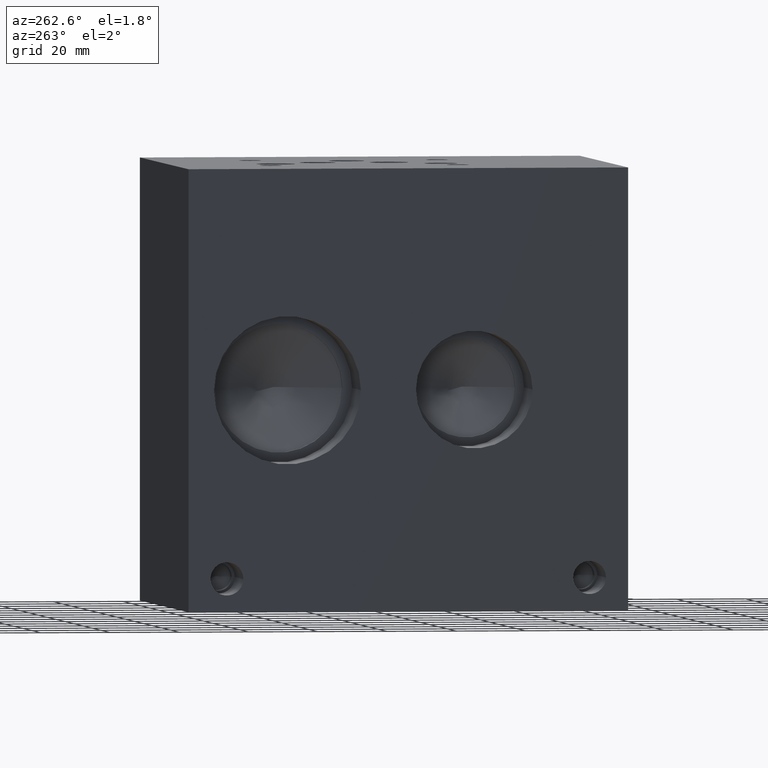
[diagram: clean part render]
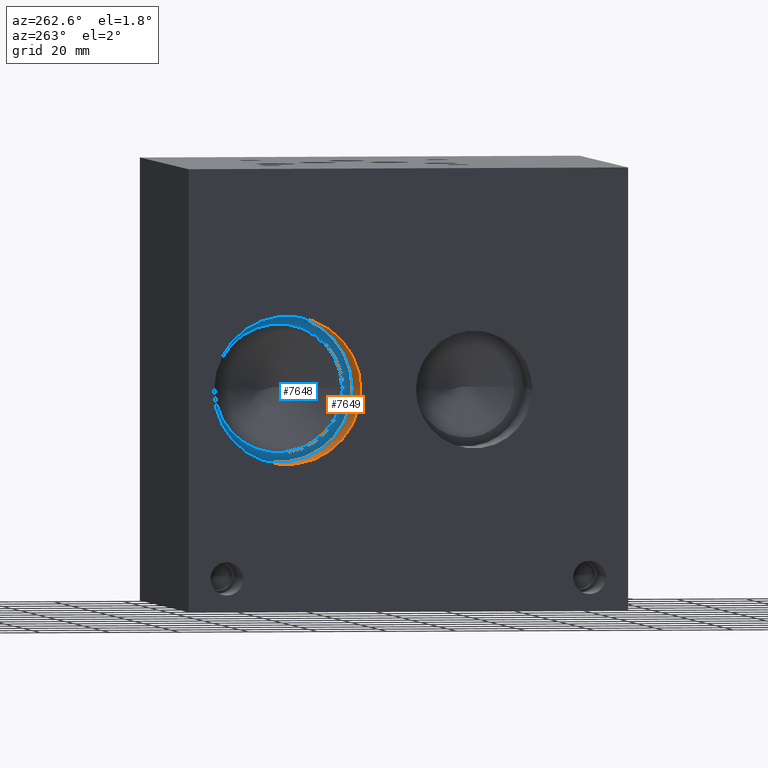
[diagram: same view with the hole feature highlighted: cylindrical wall and planar end face, labeled with their STEP entity ids]
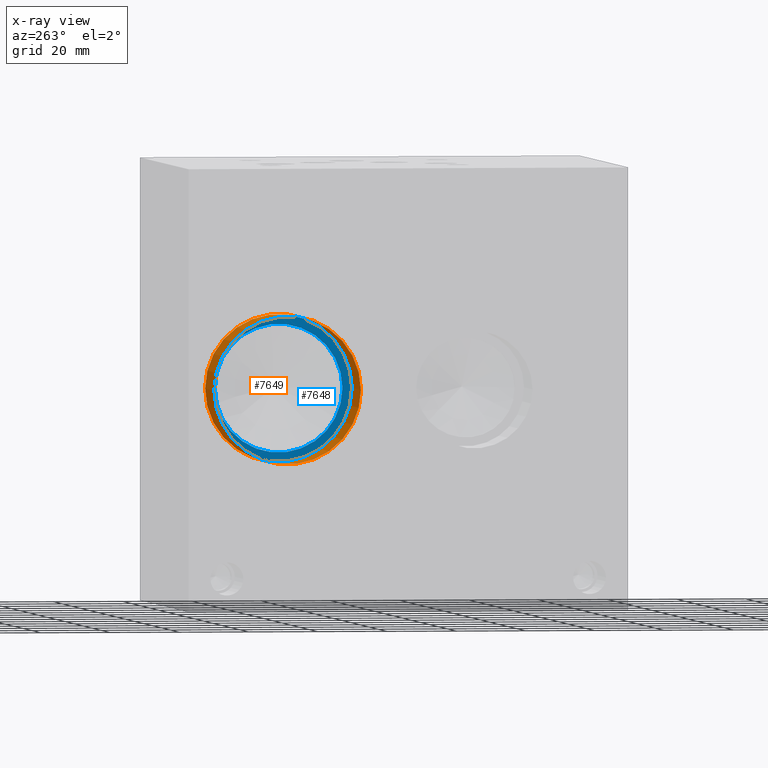
[diagram: x-ray of the same camera — body ghosted, the hole faces saturated]
A machine part, auxiliary view. The highlighted faces form one hole feature of diameter 42.4688 mm: the cylindrical wall (entity #7649, orange) and its adjacent planar end face (entity #7648, blue) — they share a circular edge in the B-rep.
The next image is the same camera in x-ray (body ghosted, the hole faces saturated) — the bore reads through the body.
Wall:
#45=CYLINDRICAL_SURFACE('',#8073,21.2344);
#179=CIRCLE('',#8070,21.2344);
#180=CIRCLE('',#8071,21.2344);
#182=CIRCLE('',#8074,21.2344);
#183=CIRCLE('',#8075,21.2344);
#866=FACE_OUTER_BOUND('',#1297,.T.);
#1297=EDGE_LOOP('',(#6798,#6799,#6800,#6801,#6802,#6803));
#2055=LINE('',#13014,#2798);
#2798=VECTOR('',#9628,21.2344);
#3710=VERTEX_POINT('',#13003);
#3711=VERTEX_POINT('',#13004);
#3713=VERTEX_POINT('',#13010);
#3714=VERTEX_POINT('',#13011);
#4753=EDGE_CURVE('',#3710,#3711,#179,.T.);
#4754=EDGE_CURVE('',#3711,#3710,#180,.T.);
#4756=EDGE_CURVE('',#3713,#3714,#182,.T.);
#4757=EDGE_CURVE('',#3714,#3713,#183,.T.);
#4758=EDGE_CURVE('',#3714,#3711,#2055,.T.);
#6798=ORIENTED_EDGE('',*,*,#4756,.F.);
#6799=ORIENTED_EDGE('',*,*,#4757,.F.);
#6800=ORIENTED_EDGE('',*,*,#4758,.T.);
#6801=ORIENTED_EDGE('',*,*,#4753,.F.);
#6802=ORIENTED_EDGE('',*,*,#4754,.F.);
#6803=ORIENTED_EDGE('',*,*,#4758,.F.);
#7649=ADVANCED_FACE('',(#866),#45,.F.);
#8070=AXIS2_PLACEMENT_3D('',#13005,#9616,#9617);
#8071=AXIS2_PLACEMENT_3D('',#13006,#9618,#9619);
#8073=AXIS2_PLACEMENT_3D('',#13009,#9622,#9623);
#8074=AXIS2_PLACEMENT_3D('',#13012,#9624,#9625);
#8075=AXIS2_PLACEMENT_3D('',#13013,#9626,#9627);
#9616=DIRECTION('center_axis',(-1.,0.,0.));
#9617=DIRECTION('ref_axis',(0.,1.,0.));
#9618=DIRECTION('center_axis',(-1.,0.,0.));
#9619=DIRECTION('ref_axis',(0.,1.,0.));
#9622=DIRECTION('center_axis',(-1.,0.,0.));
#9623=DIRECTION('ref_axis',(0.,1.,0.));
#9624=DIRECTION('center_axis',(1.,0.,0.));
#9625=DIRECTION('ref_axis',(0.,1.,0.));
#9626=DIRECTION('center_axis',(1.,0.,0.));
#9627=DIRECTION('ref_axis',(0.,1.,0.));
#9628=DIRECTION('',(1.,0.,0.));
#13003=CARTESIAN_POINT('',(19.5072,119.6594,63.5));
#13004=CARTESIAN_POINT('',(19.5072,77.1906,63.5));
#13005=CARTESIAN_POINT('Origin',(19.5072,98.425,63.5));
#13006=CARTESIAN_POINT('Origin',(19.5072,98.425,63.5));
#13009=CARTESIAN_POINT('Origin',(9.7536,98.425,63.5));
#13010=CARTESIAN_POINT('',(0.,119.6594,63.5));
#13011=CARTESIAN_POINT('',(0.,77.1906,63.5));
#13012=CARTESIAN_POINT('Origin',(0.,98.425,63.5));
#13013=CARTESIAN_POINT('Origin',(0.,98.425,63.5));
#13014=CARTESIAN_POINT('',(9.7536,77.1906,63.5));
End face:
#179=CIRCLE('',#8070,21.2344);
#180=CIRCLE('',#8071,21.2344);
#181=CIRCLE('',#8072,18.4531);
#226=FACE_BOUND('',#1296,.T.);
#479=PLANE('',#8069);
#865=FACE_OUTER_BOUND('',#1295,.T.);
#1295=EDGE_LOOP('',(#6795,#6796));
#1296=EDGE_LOOP('',(#6797));
#3710=VERTEX_POINT('',#13003);
#3711=VERTEX_POINT('',#13004);
#3712=VERTEX_POINT('',#13007);
#4753=EDGE_CURVE('',#3710,#3711,#179,.T.);
#4754=EDGE_CURVE('',#3711,#3710,#180,.T.);
#4755=EDGE_CURVE('',#3712,#3712,#181,.T.);
#6795=ORIENTED_EDGE('',*,*,#4753,.T.);
#6796=ORIENTED_EDGE('',*,*,#4754,.T.);
#6797=ORIENTED_EDGE('',*,*,#4755,.F.);
#7648=ADVANCED_FACE('',(#865,#226),#479,.T.);
#8069=AXIS2_PLACEMENT_3D('',#13002,#9614,#9615);
#8070=AXIS2_PLACEMENT_3D('',#13005,#9616,#9617);
#8071=AXIS2_PLACEMENT_3D('',#13006,#9618,#9619);
#8072=AXIS2_PLACEMENT_3D('',#13008,#9620,#9621);
#9614=DIRECTION('center_axis',(-1.,0.,0.));
#9615=DIRECTION('ref_axis',(0.,1.,0.));
#9616=DIRECTION('center_axis',(-1.,0.,0.));
#9617=DIRECTION('ref_axis',(0.,1.,0.));
#9618=DIRECTION('center_axis',(-1.,0.,0.));
#9619=DIRECTION('ref_axis',(0.,1.,0.));
#9620=DIRECTION('center_axis',(-1.,0.,0.));
#9621=DIRECTION('ref_axis',(0.,1.,0.));
#13002=CARTESIAN_POINT('Origin',(19.5072,98.425,63.5));
#13003=CARTESIAN_POINT('',(19.5072,119.6594,63.5));
#13004=CARTESIAN_POINT('',(19.5072,77.1906,63.5));
#13005=CARTESIAN_POINT('Origin',(19.5072,98.425,63.5));
#13006=CARTESIAN_POINT('Origin',(19.5072,98.425,63.5));
#13007=CARTESIAN_POINT('',(19.5072,79.9719,63.5));
#13008=CARTESIAN_POINT('Origin',(19.5072,98.425,63.5));